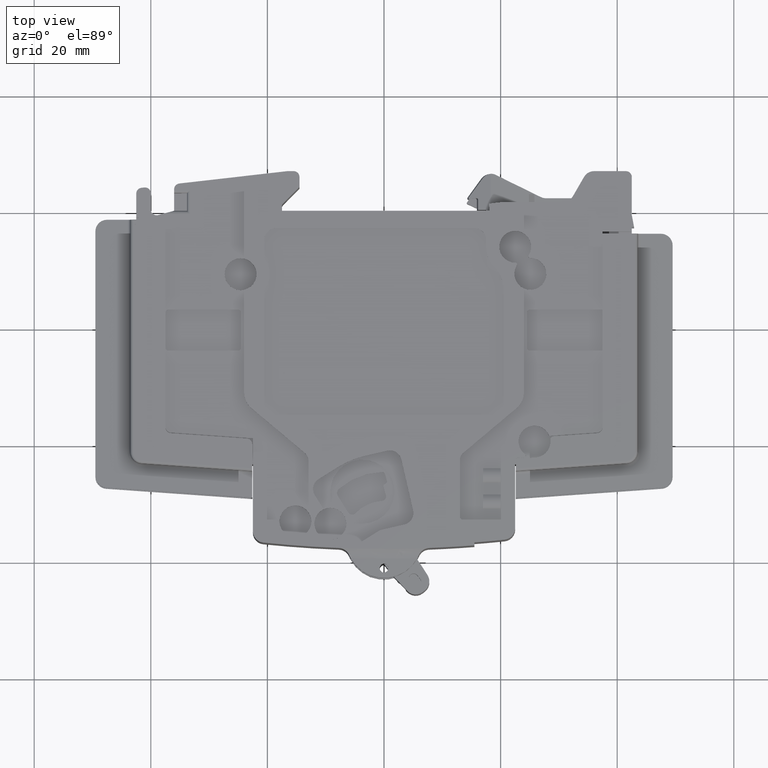
[diagram: clean part render]
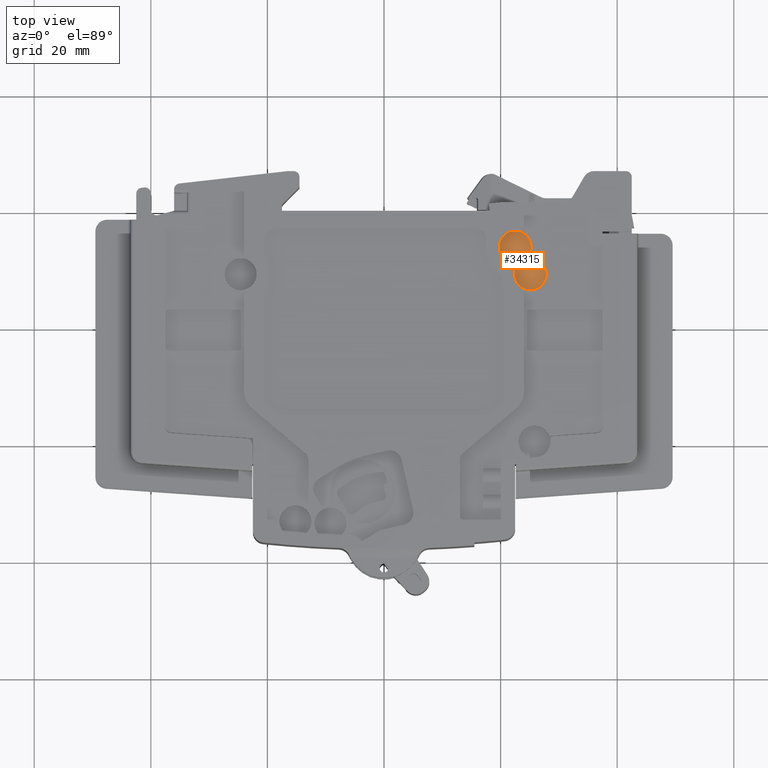
[diagram: same view with one face highlighted and labeled with its STEP entity id]
A machine part, top view. The second image highlights one B-rep face of the part: STEP entity #34315.
In plain terms, the highlighted planar face has unit normal (0, 0, 1).
Its self-contained STEP definition (entity closure, byte-faithful):
#5338=CARTESIAN_POINT('',(2.51E1,-1.085E1,7.9E0));
#5339=DIRECTION('',(0.E0,0.E0,1.E0));
#5340=DIRECTION('',(-8.433783838454E-1,5.373201109788E-1,0.E0));
#5341=AXIS2_PLACEMENT_3D('',#5338,#5339,#5340);
#5343=CARTESIAN_POINT('',(2.254878038887E1,-9.224606664289E0,7.9E0));
#5344=DIRECTION('',(0.E0,0.E0,1.E0));
#5345=DIRECTION('',(8.433783838454E-1,-5.373201109788E-1,0.E0));
#5346=AXIS2_PLACEMENT_3D('',#5343,#5344,#5345);
#5348=CARTESIAN_POINT('',(2.25E1,-6.2E0,7.9E0));
#5349=DIRECTION('',(0.E0,0.E0,1.E0));
#5350=DIRECTION('',(-1.219598431930E-1,9.925350354765E-1,0.E0));
#5351=AXIS2_PLACEMENT_3D('',#5348,#5349,#5350);
#5353=DIRECTION('',(-1.E0,0.E0,0.E0));
#5354=VECTOR('',#5353,6.661179874286E-1);
#5355=CARTESIAN_POINT('',(2.283305899371E1,-3.489495365955E0,7.9E0));
#5356=LINE('',#5355,#5354);
#5357=CARTESIAN_POINT('',(2.25E1,-6.2E0,7.9E0));
#5358=DIRECTION('',(0.E0,0.E0,1.E0));
#5359=DIRECTION('',(8.433783838454E-1,-5.373201109788E-1,0.E0));
#5360=AXIS2_PLACEMENT_3D('',#5357,#5358,#5359);
#5362=CARTESIAN_POINT('',(2.505121961113E1,-7.825393335711E0,7.9E0));
#5363=DIRECTION('',(0.E0,0.E0,1.E0));
#5364=DIRECTION('',(-8.433783838454E-1,5.373201109788E-1,0.E0));
#5365=AXIS2_PLACEMENT_3D('',#5362,#5363,#5364);
#25325=CARTESIAN_POINT('',(2.279682586916E1,-9.382637540523E0,7.9E0));
#25326=CARTESIAN_POINT('',(2.505596234474E1,-8.119464457401E0,7.9E0));
#25327=VERTEX_POINT('',#25325);
#25328=VERTEX_POINT('',#25326);
#25329=CARTESIAN_POINT('',(2.480317413084E1,-7.667362459477E0,7.9E0));
#25330=VERTEX_POINT('',#25329);
#25331=CARTESIAN_POINT('',(2.283305899371E1,-3.489495365955E0,7.9E0));
#25332=VERTEX_POINT('',#25331);
#25333=CARTESIAN_POINT('',(2.216694100629E1,-3.489495365955E0,7.9E0));
#25334=CARTESIAN_POINT('',(2.254403765526E1,-8.930535542599E0,7.9E0));
#25335=VERTEX_POINT('',#25333);
#25336=VERTEX_POINT('',#25334);
#34298=CARTESIAN_POINT('',(2.75E1,0.E0,7.9E0));
#34299=DIRECTION('',(0.E0,0.E0,1.E0));
#34300=DIRECTION('',(-1.E0,0.E0,0.E0));
#34301=AXIS2_PLACEMENT_3D('',#34298,#34299,#34300);
#34302=PLANE('',#34301);
#34304=ORIENTED_EDGE('',*,*,#34303,.F.);
#34306=ORIENTED_EDGE('',*,*,#34305,.T.);
#34307=ORIENTED_EDGE('',*,*,#34286,.F.);
#34309=ORIENTED_EDGE('',*,*,#34308,.F.);
#34310=ORIENTED_EDGE('',*,*,#34278,.F.);
#34312=ORIENTED_EDGE('',*,*,#34311,.T.);
#34313=EDGE_LOOP('',(#34304,#34306,#34307,#34309,#34310,#34312));
#34314=FACE_OUTER_BOUND('',#34313,.F.);
#5342=CIRCLE('',#5341,2.730890635759E0);
#5347=CIRCLE('',#5346,2.941093642412E-1);
#5352=CIRCLE('',#5351,2.730890635759E0);
#5361=CIRCLE('',#5360,2.730890635759E0);
#5366=CIRCLE('',#5365,2.941093642412E-1);
#34278=EDGE_CURVE('',#25330,#25332,#5361,.T.);
#34286=EDGE_CURVE('',#25335,#25336,#5352,.T.);
#34303=EDGE_CURVE('',#25327,#25328,#5342,.T.);
#34305=EDGE_CURVE('',#25327,#25336,#5347,.T.);
#34308=EDGE_CURVE('',#25332,#25335,#5356,.T.);
#34311=EDGE_CURVE('',#25330,#25328,#5366,.T.);
#34315=ADVANCED_FACE('',(#34314),#34302,.T.);